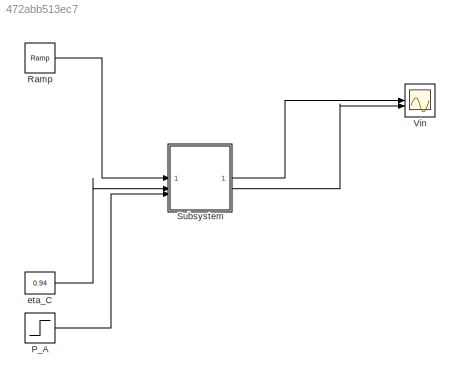
MODEL slx_472abb513ec7
KIND model
CONFIG AbsTol = auto
CONFIG EnableMultiTasking = off
CONFIG FixedStep = auto
CONFIG MaxStep = auto
CONFIG MinStep = auto
CONFIG RelTol = 1e-3
CONFIG SampleTimeConstraint = Unconstrained
CONFIG SolverName = VariableStepAuto
CONFIG StartTime = 0.0
CONFIG StopTime = 150
BLOCK [Step] P_A
  After = 1000
  NameLocation = left
  SampleTime = 0
  Time = 70
BLOCK [Reference] Ramp  REF=simulink/Sources/Ramp
  SourceBlock = simulink/Sources/Ramp
  SourceType = Ramp
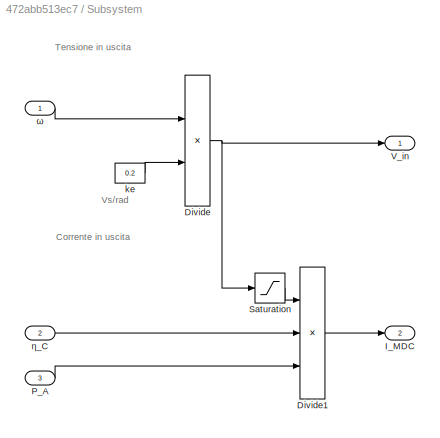
BLOCK [SubSystem] Subsystem
BLOCK [Product] Subsystem/Divide
BLOCK [Product] Subsystem/Divide1
  Inputs = //*
BLOCK [Outport] Subsystem/I_MDC
  NameLocation = right
  Port = 2
BLOCK [Inport] Subsystem/P_A
  NameLocation = left
  Port = 3
BLOCK [Saturate] Subsystem/Saturation
  LowerLimit = 1
  UpperLimit = 1000
BLOCK [Outport] Subsystem/V_in
  NameLocation = right
BLOCK [Constant] Subsystem/ke
  NameLocation = left
  Value = 0.2
BLOCK [Inport] Subsystem/η_C
  NameLocation = left
  Port = 2
BLOCK [Inport] Subsystem/ω
  NameLocation = left
BLOCK [Scope] Vin
  Floating = off
  NumInputPorts = 2
  ScopeSpecificationString = Simulink.scopes.TimeScopeBlockCfg('CurrentConfiguration', extmgr.ConfigurationSet(extmgr.Configuration('Core','General UI',true),extmgr.Configuration('Core','Source UI',true),extmgr.Configuration('Sources','WiredSimulink',true),extmgr.Configuration('Visuals','Time Domain',true,'SerializedDisplays',{struct('MinYLimReal','-35.00000','MaxYLimReal','315.00000','YLabelReal','','MinYLimMag','0.00000','M...<+2574ch>
BLOCK [Constant] eta_C
  NameLocation = left
  Value = 0.94
ANNOTATION Subsystem: Corrente in uscita
ANNOTATION Subsystem: Tensione in uscita
ANNOTATION Subsystem: Vs/rad
LINE P_A:1 -> Subsystem:3
LINE Ramp:1 -> Subsystem:1
LINE Subsystem/Divide1:1 -> Subsystem/I_MDC:1
NET Subsystem/Divide:1 -> Subsystem/Saturation:1, Subsystem/V_in:1
LINE Subsystem/P_A:1 -> Subsystem/Divide1:3
LINE Subsystem/Saturation:1 -> Subsystem/Divide1:1
LINE Subsystem/ke:1 -> Subsystem/Divide:2
LINE Subsystem/η_C:1 -> Subsystem/Divide1:2
LINE Subsystem/ω:1 -> Subsystem/Divide:1
LINE Subsystem:1 -> Vin:1
LINE Subsystem:2 -> Vin:2
LINE eta_C:1 -> Subsystem:2
note: NET lines group one-source signal fan-out (src -> all destinations, sorted); 1:1 wires keep LINE
